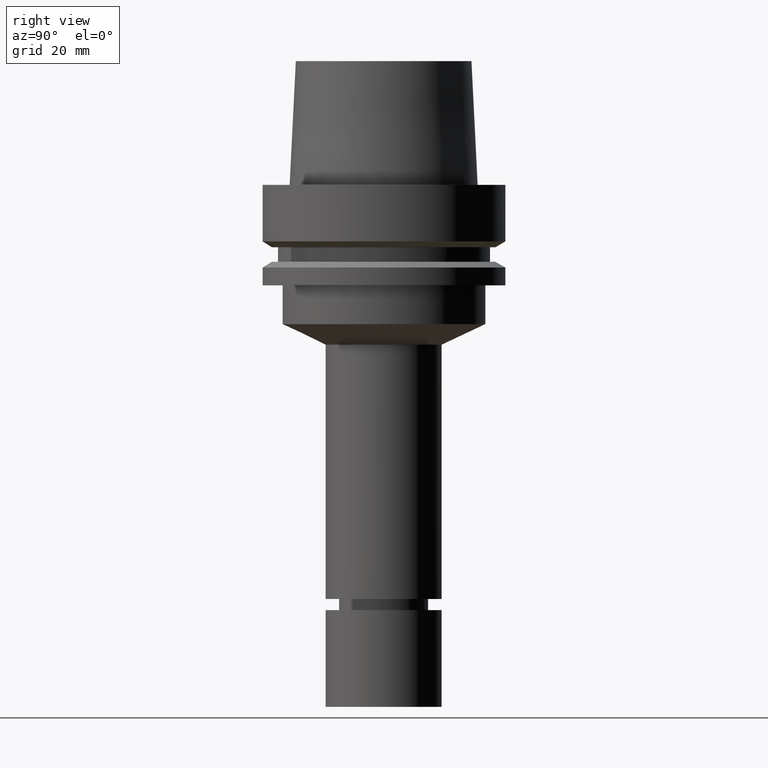
[diagram: clean part render]
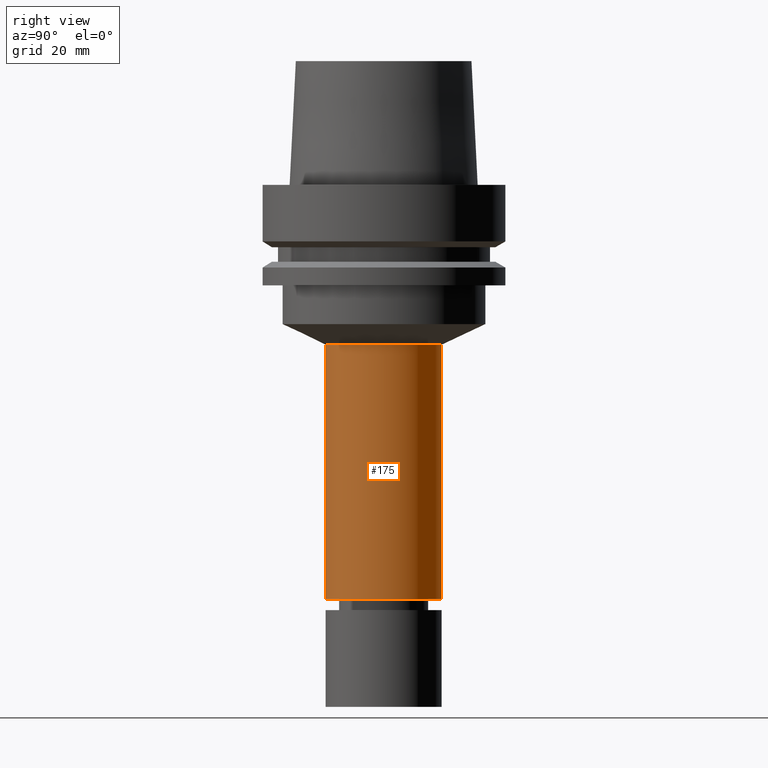
[diagram: same view with one face highlighted and labeled with its STEP entity id]
A machine part, right view. The second image highlights one B-rep face of the part: STEP entity #175.
In plain terms, the highlighted cylindrical surface (bore or boss wall) has radius 15 mm, axis along (-0, -0, 1).
Its self-contained STEP definition (entity closure, byte-faithful):
#99=EDGE_CURVE('Unnamed[1]',#246,#246,#247,.T.);
#175=ADVANCED_FACE('Unnamed[1]',(#360,#361),#362,.T.);
#188=EDGE_CURVE('Unnamed[1]',#382,#382,#383,.T.);
#246=VERTEX_POINT('',#446);
#247=CIRCLE('',#447,15.0);
#360=FACE_BOUND('',#588,.T.);
#361=FACE_BOUND('',#589,.T.);
#362=CYLINDRICAL_SURFACE('',#590,15.0000000000001);
#382=VERTEX_POINT('',#615);
#383=CIRCLE('',#616,15.0000000000002);
#446=CARTESIAN_POINT('',(2.5307207827018E-015,15.0,-41.329806838409));
#447=AXIS2_PLACEMENT_3D('',#665,#666,#667);
#588=EDGE_LOOP('',(#788));
#589=EDGE_LOOP('',(#789));
#590=AXIS2_PLACEMENT_3D('',#790,#791,#792);
#615=CARTESIAN_POINT('',(6.55798361643999E-015,15.0000000000002,-107.100000114415));
#616=AXIS2_PLACEMENT_3D('',#814,#815,#816);
#665=CARTESIAN_POINT('',(2.5307207827018E-015,5.0614415654036E-015,-41.329806838409));
#666=DIRECTION('',(-6.12323399573677E-017,-1.22464679914735E-016,1.0));
#667=DIRECTION('',(-1.23259516440783E-032,1.0,1.22464679914735E-016));
#788=ORIENTED_EDGE('',*,*,#99,.F.);
#789=ORIENTED_EDGE('',*,*,#188,.T.);
#790=CARTESIAN_POINT('',(4.54435219957089E-015,9.08870439914178E-015,-74.2149034764121));
#791=DIRECTION('',(-6.12323399573677E-017,-1.22464679914735E-016,1.0));
#792=DIRECTION('',(-1.23259516440783E-032,1.0,1.22464679914735E-016));
#814=CARTESIAN_POINT('',(6.55798361643999E-015,1.311596723288E-014,-107.100000114415));
#815=DIRECTION('',(-6.12323399573677E-017,-1.22464679914735E-016,1.0));
#816=DIRECTION('',(-1.23259516440783E-032,1.0,1.22464679914735E-016));